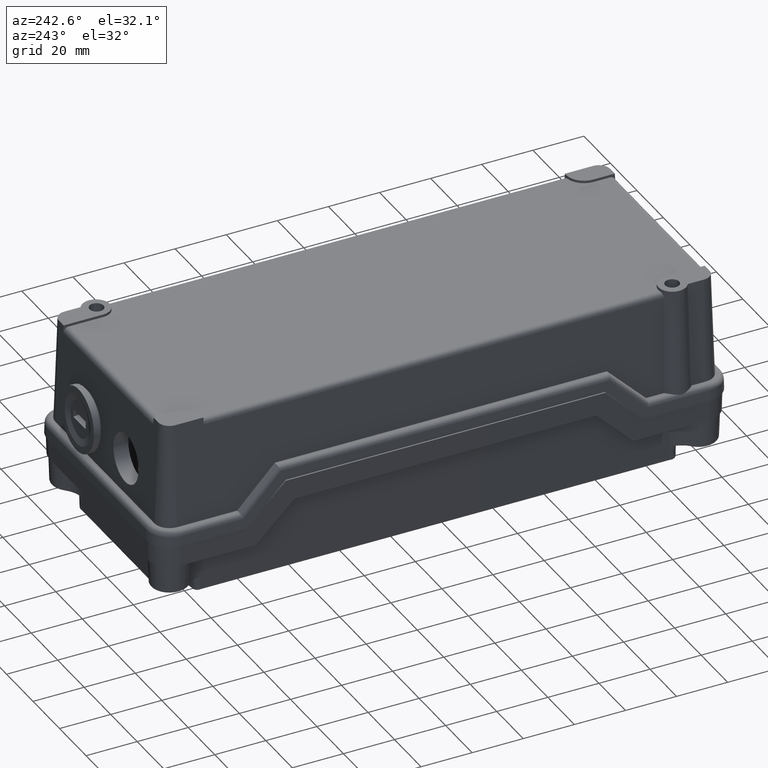
[diagram: clean part render]
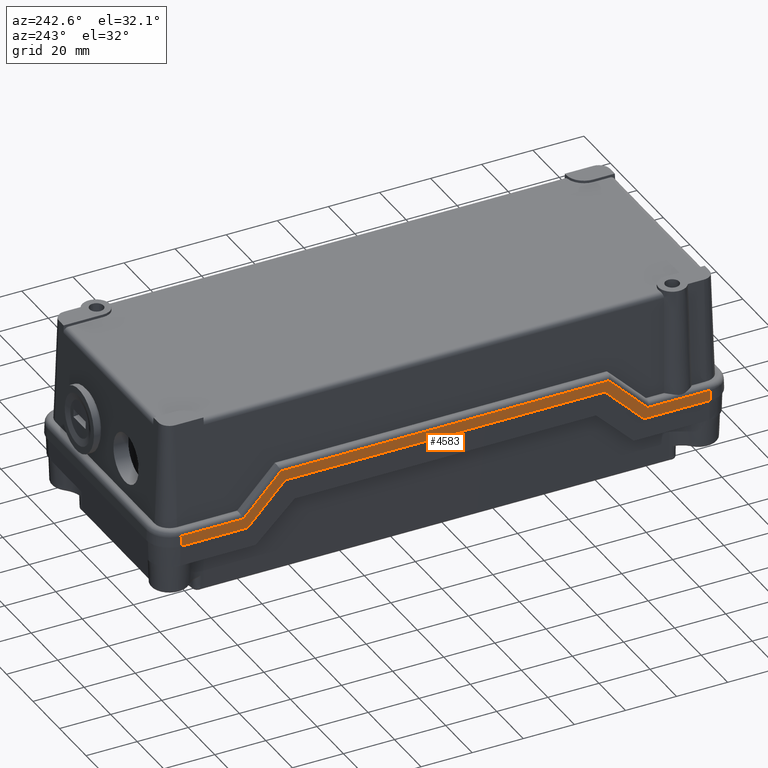
[diagram: same view with one face highlighted and labeled with its STEP entity id]
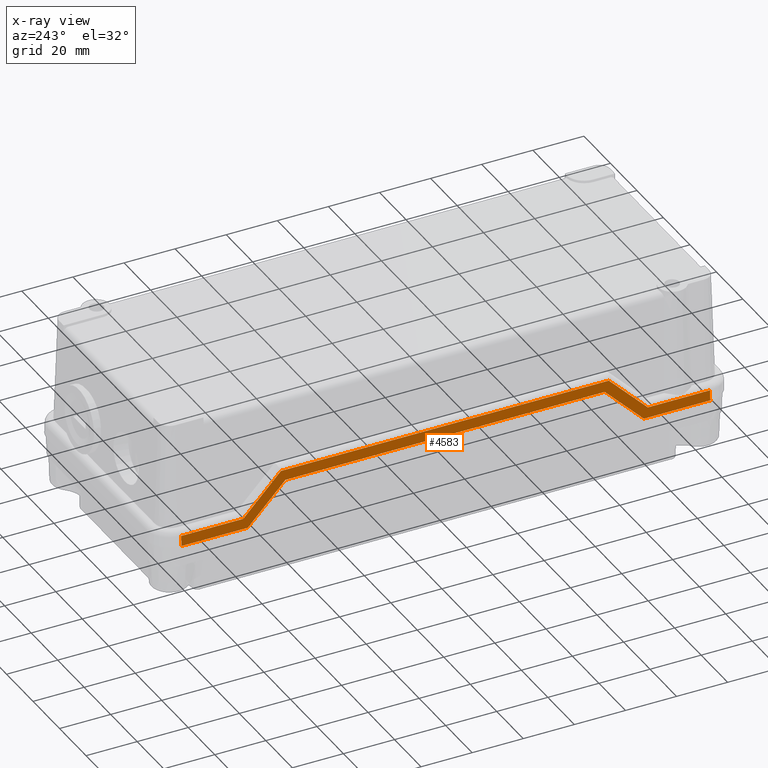
[diagram: x-ray of the same camera — body ghosted, the highlighted face saturated]
A machine part, auxiliary view. The second image highlights one B-rep face of the part: STEP entity #4583.
The next image is the same camera in x-ray: the body ghosted, the highlighted face saturated — about 0% of this face is hidden behind the body in this view.
In plain terms, the highlighted planar face has unit normal (-0.9994, -0, 0.0349).
Its self-contained STEP definition (entity closure, byte-faithful):
#1201=CARTESIAN_POINT('',(-14.448432047734377,149.756441258928850,19.085386693404981));
#1202=VERTEX_POINT('',#1201);
#1203=CARTESIAN_POINT('',(-14.448432047734368,21.442732759944072,19.085386693404981));
#1204=VERTEX_POINT('',#1203);
#1205=CARTESIAN_POINT('',(-14.448432047734377,149.756441258928850,19.085386693404981));
#1206=DIRECTION('',(0.0,-1.0,0.0));
#1207=VECTOR('',#1206,128.313708498984770);
#1208=LINE('',#1205,#1207);
#1209=EDGE_CURVE('',#1202,#1204,#1208,.T.);
#1550=CARTESIAN_POINT('',(-14.972787924589202,189.099587009436480,4.069798993405007));
#1551=VERTEX_POINT('',#1550);
#1627=CARTESIAN_POINT('',(-14.972787924589198,164.772028958928790,4.069798993405005));
#1628=VERTEX_POINT('',#1627);
#1629=CARTESIAN_POINT('',(-14.972787924589202,189.099587009436480,4.069798993405007));
#1630=DIRECTION('',(0.0,-1.0,0.0));
#1631=VECTOR('',#1630,24.327558050507690);
#1632=LINE('',#1629,#1631);
#1633=EDGE_CURVE('',#1551,#1628,#1632,.T.);
#1682=CARTESIAN_POINT('',(-14.972787924589198,164.772028958928790,4.069798993405005));
#1683=DIRECTION('',(0.024685188407832,-0.706891307583163,0.706891307583165));
#1684=VECTOR('',#1683,21.241720670378193);
#1685=LINE('',#1682,#1684);
#1686=EDGE_CURVE('',#1628,#1202,#1685,.T.);
#1724=CARTESIAN_POINT('',(-14.972787924589186,-17.900412990563520,4.069798993405004));
#1725=VERTEX_POINT('',#1724);
#1793=CARTESIAN_POINT('',(-14.972787924589188,6.427145059944071,4.069798993405007));
#1794=VERTEX_POINT('',#1793);
#1802=CARTESIAN_POINT('',(-14.972787924589188,6.427145059944071,4.069798993405007));
#1803=DIRECTION('',(0.0,-1.0,0.0));
#1804=VECTOR('',#1803,24.327558050507591);
#1805=LINE('',#1802,#1804);
#1806=EDGE_CURVE('',#1794,#1725,#1805,.T.);
#1823=CARTESIAN_POINT('',(-14.448432047734368,21.442732759944072,19.085386693404981));
#1824=DIRECTION('',(-0.024685188407832,-0.706891307583164,-0.706891307583163));
#1825=VECTOR('',#1824,21.241720670378236);
#1826=LINE('',#1823,#1825);
#1827=EDGE_CURVE('',#1204,#1794,#1826,.T.);
#1872=CARTESIAN_POINT('',(-15.114908437115645,189.099587009436480,0.0));
#1873=VERTEX_POINT('',#1872);
#1881=CARTESIAN_POINT('',(-15.114908437115645,189.099587009436480,0.0));
#1882=DIRECTION('',(0.034899496702501,0.0,0.999390827019096));
#1883=VECTOR('',#1882,4.072279716178787);
#1884=LINE('',#1881,#1883);
#1885=EDGE_CURVE('',#1873,#1551,#1884,.T.);
#3501=CARTESIAN_POINT('',(-14.590552560260818,148.099587009436420,15.015587699999987));
#3502=VERTEX_POINT('',#3501);
#3509=CARTESIAN_POINT('',(-15.114908437115648,163.115174709436420,0.0));
#3510=VERTEX_POINT('',#3509);
#3511=CARTESIAN_POINT('',(-14.590552560260818,148.099587009436420,15.015587699999987));
#3512=DIRECTION('',(-0.024685188407832,0.706891307583164,-0.706891307583163));
#3513=VECTOR('',#3512,21.241720670378243);
#3514=LINE('',#3511,#3513);
#3515=EDGE_CURVE('',#3502,#3510,#3514,.T.);
#3532=CARTESIAN_POINT('',(-14.590552560260811,23.099587009436444,15.015587699999973));
#3533=VERTEX_POINT('',#3532);
#3540=CARTESIAN_POINT('',(-14.590552560260811,23.099587009436444,15.015587699999973));
#3541=DIRECTION('',(0.0,1.0,0.0));
#3542=VECTOR('',#3541,124.999999999999970);
#3543=LINE('',#3540,#3542);
#3544=EDGE_CURVE('',#3533,#3502,#3543,.T.);
#3556=CARTESIAN_POINT('',(-15.114908437115627,8.083999309436438,-3.330669E-015));
#3557=VERTEX_POINT('',#3556);
#3564=CARTESIAN_POINT('',(-14.590552560260811,23.099587009436444,15.015587699999973));
#3565=DIRECTION('',(-0.024685188407832,-0.706891307583164,-0.706891307583163));
#3566=VECTOR('',#3565,21.241720670378239);
#3567=LINE('',#3564,#3566);
#3568=EDGE_CURVE('',#3533,#3557,#3567,.T.);
#3616=CARTESIAN_POINT('',(-15.114908437115629,-17.900412990563520,0.0));
#3617=VERTEX_POINT('',#3616);
#3625=CARTESIAN_POINT('',(-15.114908437115627,8.083999309436438,-3.330669E-015));
#3626=DIRECTION('',(0.0,-1.0,0.0));
#3627=VECTOR('',#3626,25.984412299999960);
#3628=LINE('',#3625,#3627);
#3629=EDGE_CURVE('',#3557,#3617,#3628,.T.);
#4548=CARTESIAN_POINT('',(-15.114908437115629,-17.900412990563520,0.0));
#4549=DIRECTION('',(0.034899496702501,0.0,0.999390827019096));
#4550=VECTOR('',#4549,4.072279716178785);
#4551=LINE('',#4548,#4550);
#4552=EDGE_CURVE('',#3617,#1725,#4551,.T.);
#4559=CARTESIAN_POINT('',(-15.114908437115629,-17.900412990563520,0.0));
#4560=DIRECTION('',(-0.999390827019096,-7.504181E-017,0.034899496702501));
#4561=DIRECTION('',(0.0,-1.0,0.0));
#4562=AXIS2_PLACEMENT_3D('',#4559,#4560,#4561);
#4563=PLANE('',#4562);
#4564=ORIENTED_EDGE('',*,*,#1633,.F.);
#4565=ORIENTED_EDGE('',*,*,#1885,.F.);
#4566=CARTESIAN_POINT('',(-15.114908437115645,189.099587009436480,0.0));
#4567=DIRECTION('',(0.0,-1.0,0.0));
#4568=VECTOR('',#4567,25.984412300000059);
#4569=LINE('',#4566,#4568);
#4570=EDGE_CURVE('',#1873,#3510,#4569,.T.);
#4571=ORIENTED_EDGE('',*,*,#4570,.T.);
#4572=ORIENTED_EDGE('',*,*,#3515,.F.);
#4573=ORIENTED_EDGE('',*,*,#3544,.F.);
#4574=ORIENTED_EDGE('',*,*,#3568,.T.);
#4575=ORIENTED_EDGE('',*,*,#3629,.T.);
#4576=ORIENTED_EDGE('',*,*,#4552,.T.);
#4577=ORIENTED_EDGE('',*,*,#1806,.F.);
#4578=ORIENTED_EDGE('',*,*,#1827,.F.);
#4579=ORIENTED_EDGE('',*,*,#1209,.F.);
#4580=ORIENTED_EDGE('',*,*,#1686,.F.);
#4581=EDGE_LOOP('',(#4564,#4565,#4571,#4572,#4573,#4574,#4575,#4576,#4577,#4578,#4579,#4580));
#4582=FACE_OUTER_BOUND('',#4581,.T.);
#4583=ADVANCED_FACE('',(#4582),#4563,.T.);